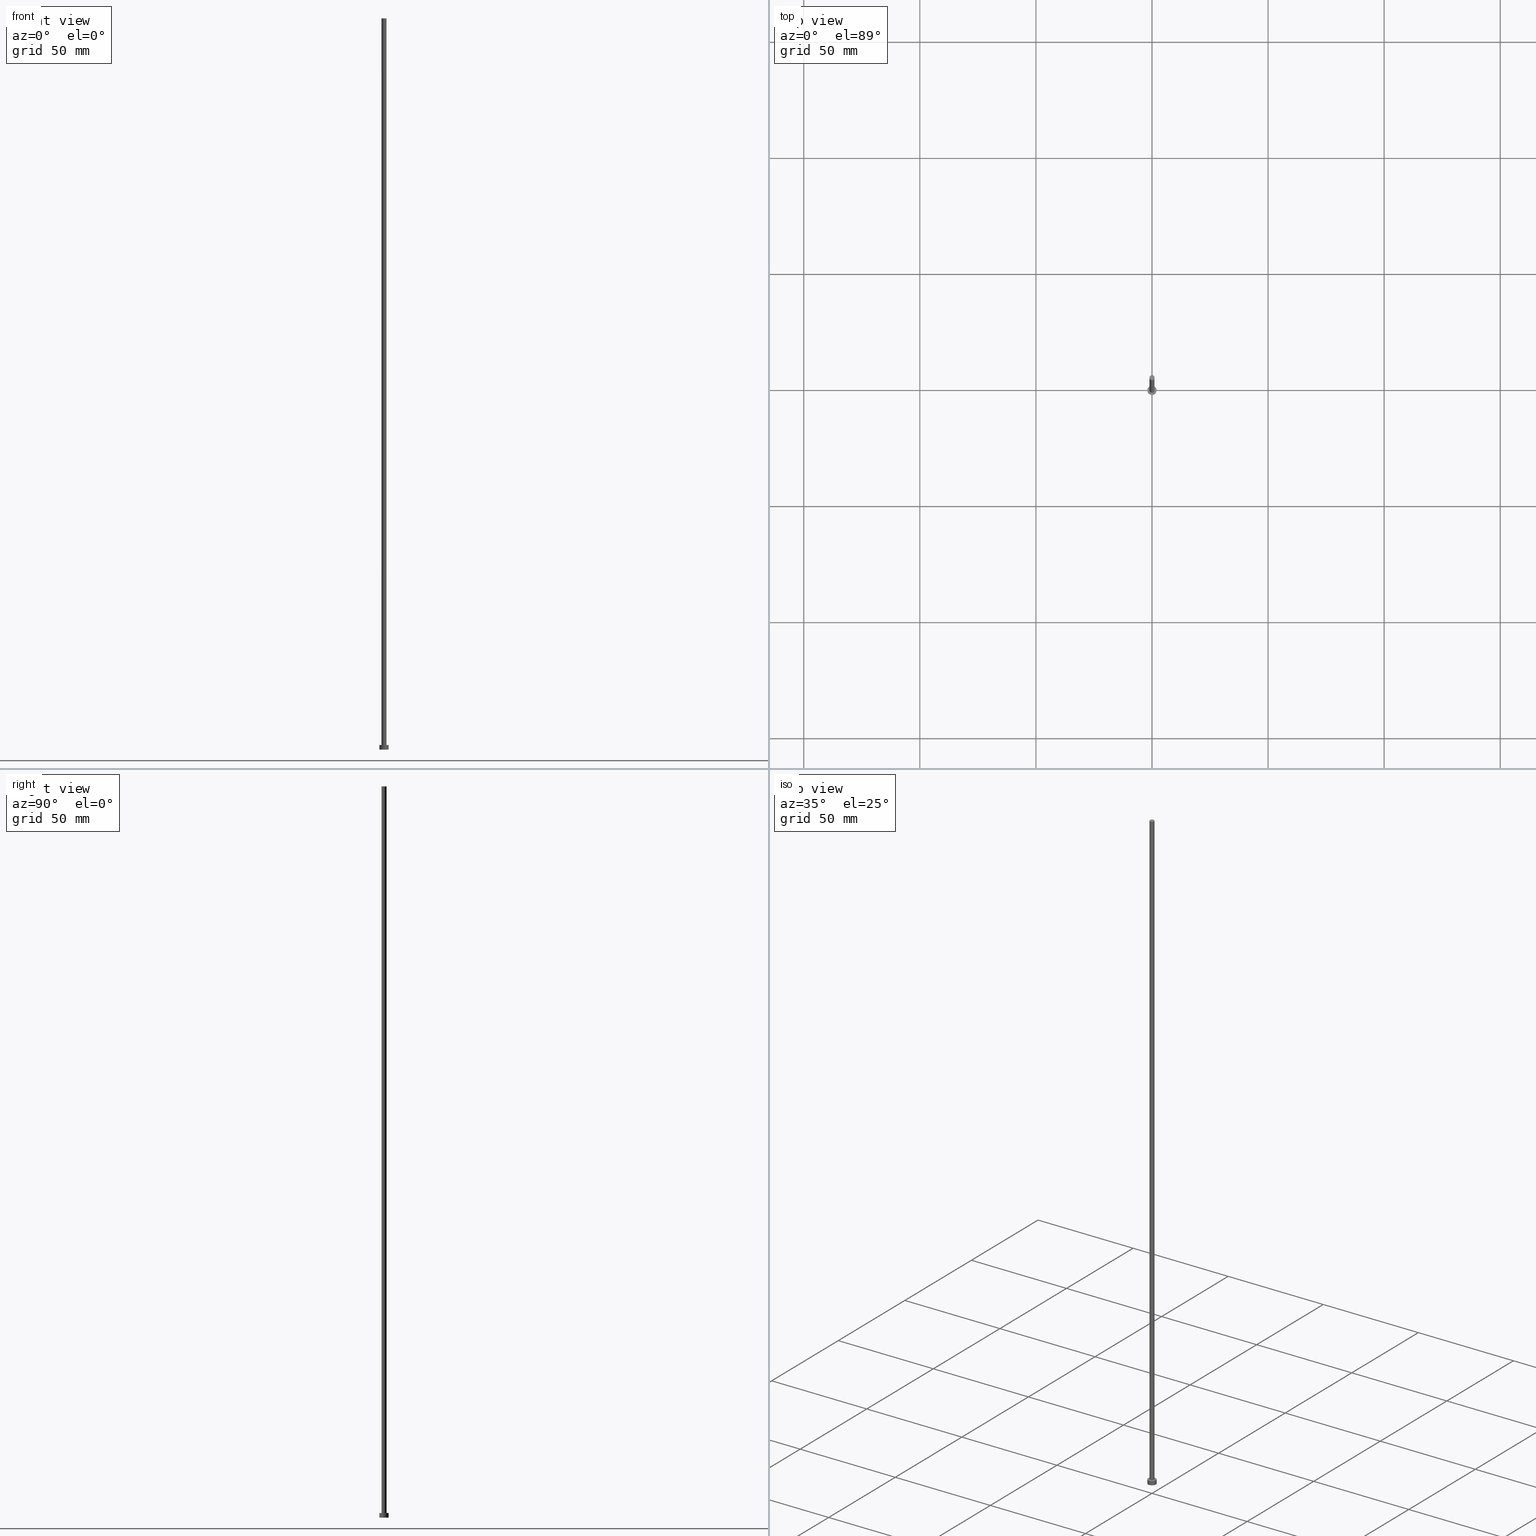
[diagram: canonical four-view strip — front | top / right | iso, engineering-drawing reading convention]
A machine part, canonical four-view strip (front | top / right | iso — engineering-drawing reading convention). The complete STEP part file that produces these views, byte-faithful:
ISO-10303-21;
HEADER;
FILE_DESCRIPTION (( 'STEP AP203' ),
    '1' );
FILE_NAME ('6e1c.STEP',
    '2023-02-13T16:41:29',
    ( '' ),
    ( '' ),
    'SwSTEP 2.0',
    'SolidWorks 2019',
    '' );
FILE_SCHEMA (( 'CONFIG_CONTROL_DESIGN' ));
ENDSEC;

DATA;
#1 = CIRCLE ( 'NONE', #244, 1.100000000000000089 ) ;
#2 = DIRECTION ( 'NONE',  ( 1.000000000000000000, 0.000000000000000000, -0.000000000000000000 ) ) ;
#3 = DESIGN_CONTEXT ( 'detailed design', #26, 'design' ) ;
#4 = PRODUCT ( '6e1c', '6e1c', '', ( #211 ) ) ;
#5 = ORGANIZATION ( 'NEUR�EN�', 'NEUR�EN�', '' ) ;
#6 = DIRECTION ( 'NONE',  ( 0.000000000000000000, 0.000000000000000000, 1.000000000000000000 ) ) ;
#7 = CARTESIAN_POINT ( 'NONE',  ( 0.000000000000000000, 0.000000000000000000, 2.000000000000000000 ) ) ;
#8 = FACE_OUTER_BOUND ( 'NONE', #185, .T. ) ;
#9 = CC_DESIGN_SECURITY_CLASSIFICATION ( #124, ( #81 ) ) ;
#10 = DIRECTION ( 'NONE',  ( -0.000000000000000000, -0.000000000000000000, -1.000000000000000000 ) ) ;
#11 = ORIENTED_EDGE ( 'NONE', *, *, #254, .F. ) ;
#12 = APPROVAL ( #114, 'NEUR�EN�' ) ;
#13 = EDGE_LOOP ( 'NONE', ( #146, #108 ) ) ;
#14 = DIRECTION ( 'NONE',  ( 1.000000000000000000, 0.000000000000000000, 0.000000000000000000 ) ) ;
#15 = CARTESIAN_POINT ( 'NONE',  ( -2.000000000000000000, 0.000000000000000000, 0.000000000000000000 ) ) ;
#16 = CARTESIAN_POINT ( 'NONE',  ( 0.000000000000000000, 0.000000000000000000, 2.000000000000000000 ) ) ;
#17 = CARTESIAN_POINT ( 'NONE',  ( 1.100000000000000089, 1.347111479062088503E-16, 315.0000000000000000 ) ) ;
#18 = EDGE_CURVE ( 'NONE', #232, #72, #33, .T. ) ;
#19 = FACE_OUTER_BOUND ( 'NONE', #13, .T. ) ;
#20 = AXIS2_PLACEMENT_3D ( 'NONE', #16, #50, #166 ) ;
#21 = DIRECTION ( 'NONE',  ( -0.000000000000000000, -0.000000000000000000, -1.000000000000000000 ) ) ;
#22 = PERSON_AND_ORGANIZATION_ROLE ( 'creator' ) ;
#23 = EDGE_CURVE ( 'NONE', #72, #143, #228, .T. ) ;
#24 = CIRCLE ( 'NONE', #44, 1.100000000000000089 ) ;
#25 = ADVANCED_BREP_SHAPE_REPRESENTATION ( '6e1c', ( #212, #220 ), #136 ) ;
#26 = APPLICATION_CONTEXT ( 'configuration controlled 3d designs of mechanical parts and assemblies' ) ;
#27 = AXIS2_PLACEMENT_3D ( 'NONE', #192, #21, #190 ) ;
#28 = EDGE_LOOP ( 'NONE', ( #130, #104, #169, #226 ) ) ;
#29 = DIRECTION ( 'NONE',  ( 0.000000000000000000, 0.000000000000000000, 1.000000000000000000 ) ) ;
#30 = AXIS2_PLACEMENT_3D ( 'NONE', #176, #235, #133 ) ;
#31 = ADVANCED_FACE ( 'NONE', ( #238 ), #37, .T. ) ;
#32 =( NAMED_UNIT ( * ) PLANE_ANGLE_UNIT ( ) SI_UNIT ( $, .RADIAN. ) );
#33 = LINE ( 'NONE', #17, #179 ) ;
#34 = AXIS2_PLACEMENT_3D ( 'NONE', #71, #86, #132 ) ;
#35 = LINE ( 'NONE', #90, #76 ) ;
#36 = DIRECTION ( 'NONE',  ( 0.000000000000000000, 0.000000000000000000, 1.000000000000000000 ) ) ;
#37 = CYLINDRICAL_SURFACE ( 'NONE', #30, 1.100000000000000089 ) ;
#38 = PERSON_AND_ORGANIZATION ( #158, #5 ) ;
#39 = AXIS2_PLACEMENT_3D ( 'NONE', #137, #245, #40 ) ;
#40 = DIRECTION ( 'NONE',  ( 1.000000000000000000, 0.000000000000000000, -0.000000000000000000 ) ) ;
#41 = CARTESIAN_POINT ( 'NONE',  ( -1.100000000000000089, 0.000000000000000000, 2.000000000000000000 ) ) ;
#42 = FACE_OUTER_BOUND ( 'NONE', #251, .T. ) ;
#43 = ADVANCED_FACE ( 'NONE', ( #116 ), #54, .T. ) ;
#44 = AXIS2_PLACEMENT_3D ( 'NONE', #162, #129, #14 ) ;
#45 = CYLINDRICAL_SURFACE ( 'NONE', #60, 2.000000000000000000 ) ;
#46 = CLOSED_SHELL ( 'NONE', ( #203, #112, #43, #156, #196, #31, #218 ) ) ;
#47 = CC_DESIGN_PERSON_AND_ORGANIZATION_ASSIGNMENT ( #147, #22, ( #107 ) ) ;
#48 = EDGE_LOOP ( 'NONE', ( #110, #208 ) ) ;
#49 = ORIENTED_EDGE ( 'NONE', *, *, #139, .F. ) ;
#50 = DIRECTION ( 'NONE',  ( 0.000000000000000000, 0.000000000000000000, 1.000000000000000000 ) ) ;
#51 = CARTESIAN_POINT ( 'NONE',  ( 2.000000000000000000, 2.449293598294706414E-16, 2.000000000000000000 ) ) ;
#52 = PLANE ( 'NONE',  #154 ) ;
#53 = VERTEX_POINT ( 'NONE', #214 ) ;
#54 = CYLINDRICAL_SURFACE ( 'NONE', #27, 2.000000000000000000 ) ;
#55 = APPROVAL_DATE_TIME ( #119, #138 ) ;
#56 = CALENDAR_DATE ( 2023, 13, 2 ) ;
#57 = CC_DESIGN_PERSON_AND_ORGANIZATION_ASSIGNMENT ( #75, #240, ( #4 ) ) ;
#58 = APPLICATION_PROTOCOL_DEFINITION ( 'international standard', 'config_control_design', 1994, #26 ) ;
#59 = LOCAL_TIME ( 17, 41, 29.00000000000000000, #170 ) ;
#60 = AXIS2_PLACEMENT_3D ( 'NONE', #161, #64, #123 ) ;
#61 = DIRECTION ( 'NONE',  ( 0.000000000000000000, 0.000000000000000000, 1.000000000000000000 ) ) ;
#62 = LINE ( 'NONE', #199, #201 ) ;
#63 = VECTOR ( 'NONE', #10, 1000.000000000000000 ) ;
#64 = DIRECTION ( 'NONE',  ( -0.000000000000000000, -0.000000000000000000, -1.000000000000000000 ) ) ;
#65 = LINE ( 'NONE', #51, #63 ) ;
#66 = ORIENTED_EDGE ( 'NONE', *, *, #23, .F. ) ;
#67 = EDGE_CURVE ( 'NONE', #125, #182, #35, .T. ) ;
#68 =( LENGTH_UNIT ( ) NAMED_UNIT ( * ) SI_UNIT ( .MILLI., .METRE. ) );
#69 = AXIS2_PLACEMENT_3D ( 'NONE', #7, #157, #243 ) ;
#70 = DIRECTION ( 'NONE',  ( -0.000000000000000000, -0.000000000000000000, -1.000000000000000000 ) ) ;
#71 = CARTESIAN_POINT ( 'NONE',  ( 0.000000000000000000, 0.000000000000000000, 315.0000000000000000 ) ) ;
#72 = VERTEX_POINT ( 'NONE', #149 ) ;
#73 = DIRECTION ( 'NONE',  ( 1.000000000000000000, 0.000000000000000000, 0.000000000000000000 ) ) ;
#74 = DATE_AND_TIME ( #255, #233 ) ;
#75 = PERSON_AND_ORGANIZATION ( #158, #5 ) ;
#76 = VECTOR ( 'NONE', #70, 1000.000000000000000 ) ;
#77 = SHAPE_DEFINITION_REPRESENTATION ( #215, #25 ) ;
#78 = CC_DESIGN_APPROVAL ( #12, ( #81 ) ) ;
#79 = DIRECTION ( 'NONE',  ( 1.000000000000000000, 0.000000000000000000, 0.000000000000000000 ) ) ;
#80 = CYLINDRICAL_SURFACE ( 'NONE', #34, 1.100000000000000089 ) ;
#81 = PRODUCT_DEFINITION_FORMATION_WITH_SPECIFIED_SOURCE ( 'LIBOVOLN�', '', #4, .NOT_KNOWN. ) ;
#82 = DIRECTION ( 'NONE',  ( 0.000000000000000000, 0.000000000000000000, 1.000000000000000000 ) ) ;
#83 = EDGE_CURVE ( 'NONE', #109, #231, #65, .T. ) ;
#84 = ORIENTED_EDGE ( 'NONE', *, *, #23, .T. ) ;
#85 = ORIENTED_EDGE ( 'NONE', *, *, #148, .T. ) ;
#86 = DIRECTION ( 'NONE',  ( -0.000000000000000000, -0.000000000000000000, -1.000000000000000000 ) ) ;
#87 = DIRECTION ( 'NONE',  ( -0.000000000000000000, -0.000000000000000000, -1.000000000000000000 ) ) ;
#88 = CARTESIAN_POINT ( 'NONE',  ( 0.000000000000000000, 0.000000000000000000, 315.0000000000000000 ) ) ;
#89 = COORDINATED_UNIVERSAL_TIME_OFFSET ( 1, 0, .AHEAD. ) ;
#90 = CARTESIAN_POINT ( 'NONE',  ( -2.000000000000000000, 0.000000000000000000, 2.000000000000000000 ) ) ;
#91 = CALENDAR_DATE ( 2023, 13, 2 ) ;
#92 = EDGE_CURVE ( 'NONE', #53, #232, #1, .T. ) ;
#93 = PERSON_AND_ORGANIZATION_ROLE ( 'design_supplier' ) ;
#94 = CIRCLE ( 'NONE', #159, 2.000000000000000000 ) ;
#95 = DATE_TIME_ROLE ( 'classification_date' ) ;
#96 = APPROVAL_STATUS ( 'not_yet_approved' ) ;
#97 = LOCAL_TIME ( 17, 41, 29.00000000000000000, #134 ) ;
#98 = CARTESIAN_POINT ( 'NONE',  ( 0.000000000000000000, 0.000000000000000000, 0.000000000000000000 ) ) ;
#99 = CARTESIAN_POINT ( 'NONE',  ( 0.000000000000000000, 0.000000000000000000, 0.000000000000000000 ) ) ;
#100 = CARTESIAN_POINT ( 'NONE',  ( 2.000000000000000000, 2.449293598294706414E-16, 2.000000000000000000 ) ) ;
#101 = DIRECTION ( 'NONE',  ( 0.000000000000000000, 0.000000000000000000, 1.000000000000000000 ) ) ;
#102 = FACE_BOUND ( 'NONE', #127, .T. ) ;
#103 = LOCAL_TIME ( 17, 41, 29.00000000000000000, #120 ) ;
#104 = ORIENTED_EDGE ( 'NONE', *, *, #135, .F. ) ;
#105 = PRODUCT_RELATED_PRODUCT_CATEGORY ( 'detail', '', ( #4 ) ) ;
#106 = EDGE_CURVE ( 'NONE', #232, #53, #24, .T. ) ;
#107 = PRODUCT_DEFINITION ( 'NEZN�M�', '', #81, #3 ) ;
#108 = ORIENTED_EDGE ( 'NONE', *, *, #197, .F. ) ;
#109 = VERTEX_POINT ( 'NONE', #100 ) ;
#110 = ORIENTED_EDGE ( 'NONE', *, *, #92, .T. ) ;
#111 = AXIS2_PLACEMENT_3D ( 'NONE', #234, #173, #153 ) ;
#112 = ADVANCED_FACE ( 'NONE', ( #42 ), #45, .T. ) ;
#113 = DIRECTION ( 'NONE',  ( 1.000000000000000000, 0.000000000000000000, 0.000000000000000000 ) ) ;
#114 = APPROVAL_STATUS ( 'not_yet_approved' ) ;
#115 = PERSON_AND_ORGANIZATION_ROLE ( 'creator' ) ;
#116 = FACE_OUTER_BOUND ( 'NONE', #28, .T. ) ;
#117 = DATE_AND_TIME ( #171, #103 ) ;
#118 = CC_DESIGN_APPROVAL ( #249, ( #124 ) ) ;
#119 = DATE_AND_TIME ( #221, #59 ) ;
#120 = COORDINATED_UNIVERSAL_TIME_OFFSET ( 1, 0, .AHEAD. ) ;
#121 = APPLICATION_CONTEXT ( 'configuration controlled 3d designs of mechanical parts and assemblies' ) ;
#122 = PERSON_AND_ORGANIZATION ( #158, #5 ) ;
#123 = DIRECTION ( 'NONE',  ( -1.000000000000000000, 0.000000000000000000, 0.000000000000000000 ) ) ;
#124 = SECURITY_CLASSIFICATION ( '', '', #239 ) ;
#125 = VERTEX_POINT ( 'NONE', #198 ) ;
#126 = CIRCLE ( 'NONE', #20, 2.000000000000000000 ) ;
#127 = EDGE_LOOP ( 'NONE', ( #204, #66 ) ) ;
#128 = ORIENTED_EDGE ( 'NONE', *, *, #254, .T. ) ;
#129 = DIRECTION ( 'NONE',  ( 0.000000000000000000, 0.000000000000000000, 1.000000000000000000 ) ) ;
#130 = ORIENTED_EDGE ( 'NONE', *, *, #83, .F. ) ;
#131 = AXIS2_PLACEMENT_3D ( 'NONE', #99, #101, #178 ) ;
#132 = DIRECTION ( 'NONE',  ( -1.000000000000000000, 0.000000000000000000, 0.000000000000000000 ) ) ;
#133 = DIRECTION ( 'NONE',  ( -1.000000000000000000, 0.000000000000000000, 0.000000000000000000 ) ) ;
#134 = COORDINATED_UNIVERSAL_TIME_OFFSET ( 1, 0, .AHEAD. ) ;
#135 = EDGE_CURVE ( 'NONE', #125, #109, #193, .T. ) ;
#136 =( GEOMETRIC_REPRESENTATION_CONTEXT ( 3 ) GLOBAL_UNCERTAINTY_ASSIGNED_CONTEXT ( ( #175 ) ) GLOBAL_UNIT_ASSIGNED_CONTEXT ( ( #68, #32, #184 ) ) REPRESENTATION_CONTEXT ( 'NONE', 'WORKASPACE' ) );
#137 = CARTESIAN_POINT ( 'NONE',  ( 0.000000000000000000, 0.000000000000000000, 2.000000000000000000 ) ) ;
#138 = APPROVAL ( #217, 'NEUR�EN�' ) ;
#139 = EDGE_CURVE ( 'NONE', #53, #143, #62, .T. ) ;
#140 = ORIENTED_EDGE ( 'NONE', *, *, #67, .F. ) ;
#141 = EDGE_LOOP ( 'NONE', ( #163, #248, #210, #85 ) ) ;
#142 = ORIENTED_EDGE ( 'NONE', *, *, #135, .T. ) ;
#143 = VERTEX_POINT ( 'NONE', #41 ) ;
#144 = CARTESIAN_POINT ( 'NONE',  ( 2.000000000000000000, 2.449293598294706414E-16, 0.000000000000000000 ) ) ;
#145 = APPLICATION_PROTOCOL_DEFINITION ( 'international standard', 'config_control_design', 1994, #121 ) ;
#146 = ORIENTED_EDGE ( 'NONE', *, *, #181, .F. ) ;
#147 = PERSON_AND_ORGANIZATION ( #158, #5 ) ;
#148 = EDGE_CURVE ( 'NONE', #143, #72, #200, .T. ) ;
#149 = CARTESIAN_POINT ( 'NONE',  ( 1.100000000000000089, 1.347111479062088503E-16, 2.000000000000000000 ) ) ;
#150 = APPROVAL_DATE_TIME ( #177, #249 ) ;
#151 = PERSON_AND_ORGANIZATION ( #158, #5 ) ;
#152 = PLANE ( 'NONE',  #131 ) ;
#153 = DIRECTION ( 'NONE',  ( 1.000000000000000000, 0.000000000000000000, 0.000000000000000000 ) ) ;
#154 = AXIS2_PLACEMENT_3D ( 'NONE', #88, #187, #2 ) ;
#155 = FACE_OUTER_BOUND ( 'NONE', #230, .T. ) ;
#156 = ADVANCED_FACE ( 'NONE', ( #102, #155 ), #223, .T. ) ;
#157 = DIRECTION ( 'NONE',  ( 0.000000000000000000, 0.000000000000000000, 1.000000000000000000 ) ) ;
#158 = PERSON ( 'NEUR�EN�', 'NEUR�EN�', 'NEUR�EN�', ('NEUR�EN�'), ('NEUR�EN�'), ('NEUR�EN�') ) ;
#159 = AXIS2_PLACEMENT_3D ( 'NONE', #98, #6, #113 ) ;
#160 = CARTESIAN_POINT ( 'NONE',  ( 0.000000000000000000, 0.000000000000000000, 0.000000000000000000 ) ) ;
#161 = CARTESIAN_POINT ( 'NONE',  ( 0.000000000000000000, 0.000000000000000000, 2.000000000000000000 ) ) ;
#162 = CARTESIAN_POINT ( 'NONE',  ( 0.000000000000000000, 0.000000000000000000, 315.0000000000000000 ) ) ;
#163 = ORIENTED_EDGE ( 'NONE', *, *, #18, .F. ) ;
#164 = CC_DESIGN_DATE_AND_TIME_ASSIGNMENT ( #117, #194, ( #107 ) ) ;
#165 = ORIENTED_EDGE ( 'NONE', *, *, #106, .F. ) ;
#166 = DIRECTION ( 'NONE',  ( 1.000000000000000000, 0.000000000000000000, 0.000000000000000000 ) ) ;
#167 = ORIENTED_EDGE ( 'NONE', *, *, #18, .T. ) ;
#168 = AXIS2_PLACEMENT_3D ( 'NONE', #229, #29, #79 ) ;
#169 = ORIENTED_EDGE ( 'NONE', *, *, #67, .T. ) ;
#170 = COORDINATED_UNIVERSAL_TIME_OFFSET ( 1, 0, .AHEAD. ) ;
#171 = CALENDAR_DATE ( 2023, 13, 2 ) ;
#172 = FACE_OUTER_BOUND ( 'NONE', #48, .T. ) ;
#173 = DIRECTION ( 'NONE',  ( 0.000000000000000000, 0.000000000000000000, 1.000000000000000000 ) ) ;
#174 = COORDINATED_UNIVERSAL_TIME_OFFSET ( 1, 0, .AHEAD. ) ;
#175 = UNCERTAINTY_MEASURE_WITH_UNIT (LENGTH_MEASURE( 1.000000000000000082E-05 ), #68, 'distance_accuracy_value', 'NONE');
#176 = CARTESIAN_POINT ( 'NONE',  ( 0.000000000000000000, 0.000000000000000000, 315.0000000000000000 ) ) ;
#177 = DATE_AND_TIME ( #91, #97 ) ;
#178 = DIRECTION ( 'NONE',  ( 1.000000000000000000, 0.000000000000000000, -0.000000000000000000 ) ) ;
#179 = VECTOR ( 'NONE', #87, 1000.000000000000000 ) ;
#180 = DIRECTION ( 'NONE',  ( 1.000000000000000000, 0.000000000000000000, 0.000000000000000000 ) ) ;
#181 = EDGE_CURVE ( 'NONE', #182, #231, #94, .T. ) ;
#182 = VERTEX_POINT ( 'NONE', #15 ) ;
#183 = CC_DESIGN_DATE_AND_TIME_ASSIGNMENT ( #219, #95, ( #124 ) ) ;
#184 =( NAMED_UNIT ( * ) SI_UNIT ( $, .STERADIAN. ) SOLID_ANGLE_UNIT ( ) );
#185 = EDGE_LOOP ( 'NONE', ( #165, #167, #84, #49 ) ) ;
#186 = CC_DESIGN_PERSON_AND_ORGANIZATION_ASSIGNMENT ( #191, #93, ( #81 ) ) ;
#187 = DIRECTION ( 'NONE',  ( 0.000000000000000000, 0.000000000000000000, 1.000000000000000000 ) ) ;
#188 = CIRCLE ( 'NONE', #241, 2.000000000000000000 ) ;
#189 = APPROVAL_ROLE ( '' ) ;
#190 = DIRECTION ( 'NONE',  ( -1.000000000000000000, 0.000000000000000000, 0.000000000000000000 ) ) ;
#191 = PERSON_AND_ORGANIZATION ( #158, #5 ) ;
#192 = CARTESIAN_POINT ( 'NONE',  ( 0.000000000000000000, 0.000000000000000000, 2.000000000000000000 ) ) ;
#193 = CIRCLE ( 'NONE', #69, 2.000000000000000000 ) ;
#194 = DATE_TIME_ROLE ( 'creation_date' ) ;
#195 = APPROVAL_ROLE ( '' ) ;
#196 = ADVANCED_FACE ( 'NONE', ( #19 ), #152, .F. ) ;
#197 = EDGE_CURVE ( 'NONE', #231, #182, #188, .T. ) ;
#198 = CARTESIAN_POINT ( 'NONE',  ( -2.000000000000000000, 0.000000000000000000, 2.000000000000000000 ) ) ;
#199 = CARTESIAN_POINT ( 'NONE',  ( -1.100000000000000089, 0.000000000000000000, 315.0000000000000000 ) ) ;
#200 = CIRCLE ( 'NONE', #168, 1.100000000000000089 ) ;
#201 = VECTOR ( 'NONE', #225, 1000.000000000000000 ) ;
#202 = ORIENTED_EDGE ( 'NONE', *, *, #197, .T. ) ;
#203 = ADVANCED_FACE ( 'NONE', ( #8 ), #80, .T. ) ;
#204 = ORIENTED_EDGE ( 'NONE', *, *, #148, .F. ) ;
#205 = CC_DESIGN_APPROVAL ( #138, ( #107 ) ) ;
#206 = ORIENTED_EDGE ( 'NONE', *, *, #83, .T. ) ;
#207 = CARTESIAN_POINT ( 'NONE',  ( 1.100000000000000089, 1.347111479062088503E-16, 315.0000000000000000 ) ) ;
#208 = ORIENTED_EDGE ( 'NONE', *, *, #106, .T. ) ;
#209 = CC_DESIGN_PERSON_AND_ORGANIZATION_ASSIGNMENT ( #151, #115, ( #81 ) ) ;
#210 = ORIENTED_EDGE ( 'NONE', *, *, #139, .T. ) ;
#211 = MECHANICAL_CONTEXT ( 'NONE', #121, 'mechanical' ) ;
#212 = MANIFOLD_SOLID_BREP ( 'P�idat vysunut�m3', #46 ) ;
#213 = APPROVAL_PERSON_ORGANIZATION ( #38, #138, #216 ) ;
#214 = CARTESIAN_POINT ( 'NONE',  ( -1.100000000000000089, 0.000000000000000000, 315.0000000000000000 ) ) ;
#215 = PRODUCT_DEFINITION_SHAPE ( 'NONE', 'NONE',  #107 ) ;
#216 = APPROVAL_ROLE ( '' ) ;
#217 = APPROVAL_STATUS ( 'not_yet_approved' ) ;
#218 = ADVANCED_FACE ( 'NONE', ( #172 ), #52, .T. ) ;
#219 = DATE_AND_TIME ( #56, #250 ) ;
#220 = AXIS2_PLACEMENT_3D ( 'NONE', #252, #36, #73 ) ;
#221 = CALENDAR_DATE ( 2023, 13, 2 ) ;
#222 = PERSON_AND_ORGANIZATION ( #158, #5 ) ;
#223 = PLANE ( 'NONE',  #39 ) ;
#224 = PERSON_AND_ORGANIZATION_ROLE ( 'classification_officer' ) ;
#225 = DIRECTION ( 'NONE',  ( -0.000000000000000000, -0.000000000000000000, -1.000000000000000000 ) ) ;
#226 = ORIENTED_EDGE ( 'NONE', *, *, #181, .T. ) ;
#227 = CARTESIAN_POINT ( 'NONE',  ( 0.000000000000000000, 0.000000000000000000, 315.0000000000000000 ) ) ;
#228 = CIRCLE ( 'NONE', #111, 1.100000000000000089 ) ;
#229 = CARTESIAN_POINT ( 'NONE',  ( 0.000000000000000000, 0.000000000000000000, 2.000000000000000000 ) ) ;
#230 = EDGE_LOOP ( 'NONE', ( #142, #128 ) ) ;
#231 = VERTEX_POINT ( 'NONE', #144 ) ;
#232 = VERTEX_POINT ( 'NONE', #207 ) ;
#233 = LOCAL_TIME ( 17, 41, 29.00000000000000000, #89 ) ;
#234 = CARTESIAN_POINT ( 'NONE',  ( 0.000000000000000000, 0.000000000000000000, 2.000000000000000000 ) ) ;
#235 = DIRECTION ( 'NONE',  ( -0.000000000000000000, -0.000000000000000000, -1.000000000000000000 ) ) ;
#236 = APPROVAL_DATE_TIME ( #74, #12 ) ;
#237 = CC_DESIGN_PERSON_AND_ORGANIZATION_ASSIGNMENT ( #122, #224, ( #124 ) ) ;
#238 = FACE_OUTER_BOUND ( 'NONE', #141, .T. ) ;
#239 = SECURITY_CLASSIFICATION_LEVEL ( 'unclassified' ) ;
#240 = PERSON_AND_ORGANIZATION_ROLE ( 'design_owner' ) ;
#241 = AXIS2_PLACEMENT_3D ( 'NONE', #160, #61, #180 ) ;
#242 = APPROVAL_PERSON_ORGANIZATION ( #253, #12, #189 ) ;
#243 = DIRECTION ( 'NONE',  ( 1.000000000000000000, 0.000000000000000000, 0.000000000000000000 ) ) ;
#244 = AXIS2_PLACEMENT_3D ( 'NONE', #227, #82, #246 ) ;
#245 = DIRECTION ( 'NONE',  ( 0.000000000000000000, 0.000000000000000000, 1.000000000000000000 ) ) ;
#246 = DIRECTION ( 'NONE',  ( 1.000000000000000000, 0.000000000000000000, 0.000000000000000000 ) ) ;
#247 = APPROVAL_PERSON_ORGANIZATION ( #222, #249, #195 ) ;
#248 = ORIENTED_EDGE ( 'NONE', *, *, #92, .F. ) ;
#249 = APPROVAL ( #96, 'NEUR�EN�' ) ;
#250 = LOCAL_TIME ( 17, 41, 29.00000000000000000, #174 ) ;
#251 = EDGE_LOOP ( 'NONE', ( #11, #206, #202, #140 ) ) ;
#252 = CARTESIAN_POINT ( 'NONE',  ( 0.000000000000000000, 0.000000000000000000, 0.000000000000000000 ) ) ;
#253 = PERSON_AND_ORGANIZATION ( #158, #5 ) ;
#254 = EDGE_CURVE ( 'NONE', #109, #125, #126, .T. ) ;
#255 = CALENDAR_DATE ( 2023, 13, 2 ) ;
ENDSEC;
END-ISO-10303-21;
